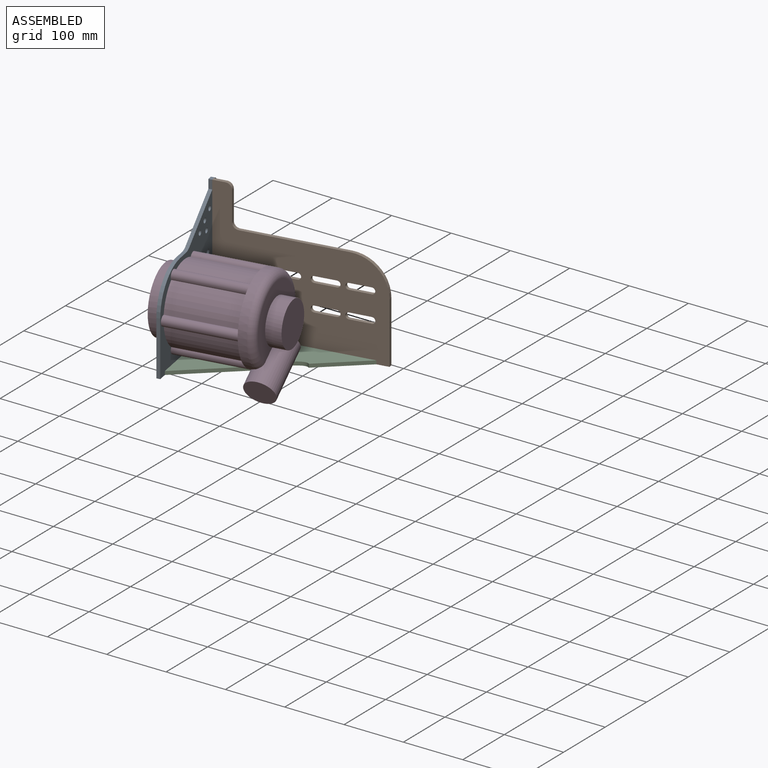
[diagram: assembled view]
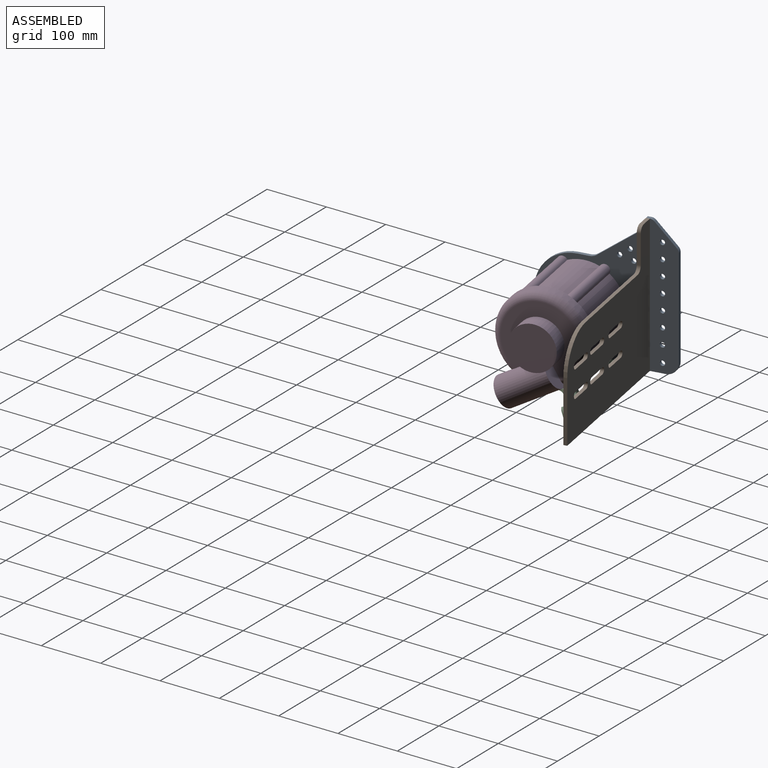
[diagram: assembled view, second angle]
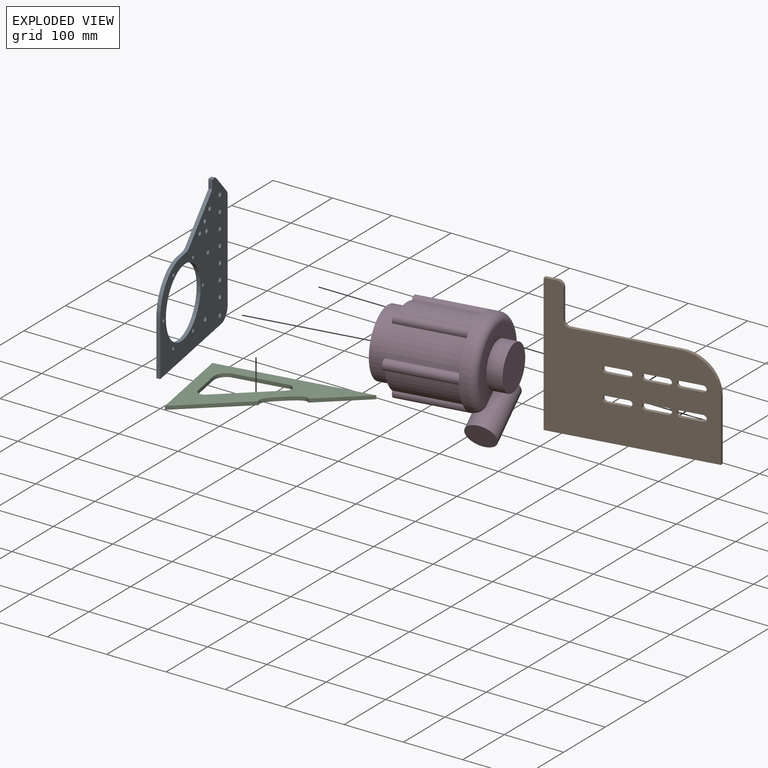
[diagram: exploded view]
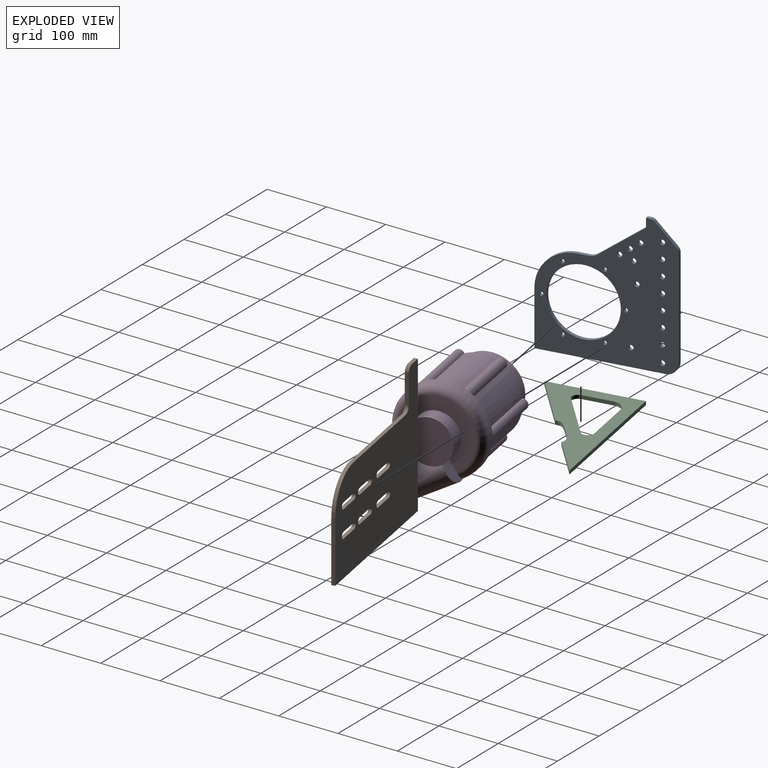
[diagram: exploded view, second angle]
ASSEMBLY  parts=4 mates=3
PART A: 36 faces, bbox 6x220x232 mm
  f0: plane 15x6mm, normal (0,-1,0), area 90mm2, adj f1,f32,f34,f35
  f1: plane 74.67x56mm, normal (0,-0.6,0.8), area 560mm2, adj f0,f2,f34,f35
  f2: cylinder r=20mm len=12mm, axis (-1,0,0), area 77.2mm2, adj f1,f3,f34,f35
  f3: plane 18.33x6mm, normal (0,0,1), area 110mm2, adj f2,f4,f34,f35
  f4: cylinder r=65mm len=65mm, axis (-1,0,0), area 612.6mm2, adj f3,f5,f34,f35
  f5: plane 92x6mm, normal (0,-1,0), area 552mm2, adj f4,f6,f34,f35
  f6: plane 200x6mm, normal (0,0,-1), area 1200mm2, adj f5,f7,f34,f35
  f7: cylinder r=20mm len=20mm, axis (-1,0,0), area 188.5mm2, adj f6,f8,f34,f35
  f8: plane 167.86x6mm, normal (0,1,0), area 1007.1mm2, adj f7,f9,f34,f35
  f9: cylinder r=10mm len=7.07mm, axis (-1,0,0), area 47.1mm2, adj f8,f10,f34,f35
  f10: plane 34.14x34.14mm, normal (0,0.71,0.71), area 289.7mm2, adj f9,f11,f34,f35
  f11: cylinder r=10mm len=7.07mm, axis (-1,0,0), area 47.1mm2, adj f10,f32,f34,f35
  f12: cylinder r=3.1mm len=6.2mm, axis (-1,0,0), area 116.9mm2, adj f34,f35
  f13: cylinder r=3.1mm len=6.2mm, axis (-1,0,0), area 116.9mm2, adj f34,f35
  f14: cylinder r=3.1mm len=6.2mm, axis (-1,0,0), area 116.9mm2, adj f34,f35
  f15: cylinder r=3.1mm len=6.2mm, axis (-1,0,0), area 116.9mm2, adj f34,f35
  f16: cylinder r=3.1mm len=6.2mm, axis (-1,0,0), area 116.9mm2, adj f34,f35
  f17: cylinder r=3.1mm len=6.2mm, axis (-1,0,0), area 116.9mm2, adj f34,f35
  f18: cylinder r=4.1mm len=8.2mm, axis (-1,0,0), area 154.6mm2, adj f34,f35
  f19: cylinder r=4.1mm len=8.2mm, axis (-1,0,0), area 154.6mm2, adj f34,f35
  f20: cylinder r=4.1mm len=8.2mm, axis (-1,0,0), area 154.6mm2, adj f34,f35
  f21: cylinder r=4.1mm len=8.2mm, axis (-1,0,0), area 154.6mm2, adj f34,f35
  f22: cylinder r=4.1mm len=8.2mm, axis (-1,0,0), area 154.6mm2, adj f34,f35
  f23: cylinder r=4.1mm len=8.2mm, axis (-1,0,0), area 154.6mm2, adj f34,f35
  f24: cylinder r=4.1mm len=8.2mm, axis (-1,0,0), area 154.6mm2, adj f34,f35
  f25: cylinder r=4.1mm len=8.2mm, axis (-1,0,0), area 154.6mm2, adj f34,f35
  f26: cylinder r=4.1mm len=8.2mm, axis (-1,0,0), area 154.6mm2, adj f34,f35
  f27: cylinder r=4.1mm len=8.2mm, axis (-1,0,0), area 154.6mm2, adj f34,f35
  f28: cylinder r=4.1mm len=8.2mm, axis (-1,0,0), area 154.6mm2, adj f34,f35
  f29: cylinder r=4.1mm len=8.2mm, axis (-1,0,0), area 154.6mm2, adj f34,f35
  f30: cylinder r=4.1mm len=8.2mm, axis (-1,0,0), area 154.6mm2, adj f34,f35
  f31: cylinder r=4.1mm len=8.2mm, axis (-1,0,0), area 154.6mm2, adj f34,f35
  f32: plane 6x5.86mm, normal (0,0,1), area 35.1mm2, adj f0,f11,f34,f35
  f33: cylinder r=56.75mm len=113.5mm, axis (-1,0,0), area 2139.4mm2, adj f34,f35
  f34: plane 232x220mm, normal (1,0,0), area 27859.6mm2, adj f0,f1,f2,f3,f4,f5,f6,f7
  f35: plane 232x220mm, normal (-1,0,0), area 27859.6mm2, adj f0,f1,f2,f3,f4,f5,f6,f7
PART B: 35 faces, bbox 270x6x232 mm
  f0: plane 35x6mm, normal (0,0,-1), area 210mm2, adj f1,f32,f33,f34
  f1: cylinder r=5.25mm len=10.5mm, axis (0,1,0), area 99mm2, adj f0,f2,f33,f34
  f2: plane 35x6mm, normal (0,0,1), area 210mm2, adj f1,f32,f33,f34
  f3: plane 35x6mm, normal (0,0,-1), area 210mm2, adj f4,f26,f33,f34
  f4: cylinder r=5.25mm len=10.5mm, axis (0,1,0), area 99mm2, adj f3,f5,f33,f34
  f5: plane 35x6mm, normal (0,0,1), area 210mm2, adj f4,f26,f33,f34
  f6: cylinder r=10mm len=10mm, axis (0,1,0), area 94.2mm2, adj f7,f27,f33,f34
  f7: plane 49x6mm, normal (1,0,0), area 294mm2, adj f6,f8,f33,f34
  f8: cylinder r=10mm len=10mm, axis (0,1,0), area 94.2mm2, adj f7,f9,f33,f34
  f9: plane 20x6mm, normal (0,0,1), area 120mm2, adj f8,f10,f33,f34
  f10: plane 232x6mm, normal (-1,0,0), area 1392mm2, adj f9,f11,f33,f34
  f11: plane 270x6mm, normal (0,0,-1), area 1620mm2, adj f10,f12,f33,f34
  f12: plane 103x6mm, normal (1,0,0), area 618mm2, adj f11,f13,f33,f34
  f13: cylinder r=60mm len=60mm, axis (0,1,0), area 565.5mm2, adj f12,f27,f33,f34
  f14: plane 35x6mm, normal (0,0,1), area 210mm2, adj f15,f28,f33,f34
  f15: cylinder r=5.25mm len=10.5mm, axis (0,1,0), area 99mm2, adj f14,f16,f33,f34
  f16: plane 35x6mm, normal (0,0,-1), area 210mm2, adj f15,f28,f33,f34
  f17: plane 35x6mm, normal (0,0,1), area 210mm2, adj f18,f29,f33,f34
  f18: cylinder r=5.25mm len=10.5mm, axis (0,1,0), area 99mm2, adj f17,f19,f33,f34
  f19: plane 35x6mm, normal (0,0,-1), area 210mm2, adj f18,f29,f33,f34
  f20: cylinder r=5.25mm len=10.5mm, axis (0,1,0), area 99mm2, adj f21,f30,f33,f34
  f21: plane 35x6mm, normal (0,0,-1), area 210mm2, adj f20,f22,f33,f34
  f22: cylinder r=5.25mm len=10.5mm, axis (0,1,0), area 99mm2, adj f21,f30,f33,f34
  f23: plane 35x6mm, normal (0,0,1), area 210mm2, adj f24,f31,f33,f34
  f24: cylinder r=5.25mm len=10.5mm, axis (0,1,0), area 99mm2, adj f23,f25,f33,f34
  f25: plane 35x6mm, normal (0,0,-1), area 210mm2, adj f24,f31,f33,f34
  f26: cylinder r=5.25mm len=10.5mm, axis (0,1,0), area 99mm2, adj f3,f5,f33,f34
  f27: plane 170x6mm, normal (0,0,1), area 1020mm2, adj f6,f13,f33,f34
  f28: cylinder r=5.25mm len=10.5mm, axis (0,1,0), area 99mm2, adj f14,f16,f33,f34
  f29: cylinder r=5.25mm len=10.5mm, axis (0,1,0), area 99mm2, adj f17,f19,f33,f34
  f30: plane 35x6mm, normal (0,0,1), area 210mm2, adj f20,f22,f33,f34
  f31: cylinder r=5.25mm len=10.5mm, axis (0,1,0), area 99mm2, adj f23,f25,f33,f34
  f32: cylinder r=5.25mm len=10.5mm, axis (0,1,0), area 99mm2, adj f0,f2,f33,f34
  f33: plane 270x232mm, normal (0,-1,0), area 42582.9mm2, adj f0,f1,f2,f3,f4,f5,f6,f7
  f34: plane 270x232mm, normal (0,1,0), area 42582.9mm2, adj f0,f1,f2,f3,f4,f5,f6,f7
PART C: 13 faces, bbox 250x155x6 mm
  f0: plane 110.49x68.5mm, normal (0.53,-0.85,0), area 780mm2, adj f1,f10,f11,f12
  f1: extruded ~60.01x39.72mm, area 466.9mm2, adj f0,f2,f11,f12
  f2: plane 80.02x49.61mm, normal (0.53,-0.85,0), area 564.9mm2, adj f1,f3,f11,f12
  f3: plane 250x6mm, normal (0,1,0), area 1500mm2, adj f2,f10,f11,f12
  f4: cylinder r=10mm len=18.5mm, axis (0,0,1), area 155.2mm2, adj f5,f9,f11,f12
  f5: plane 95.7x59.34mm, normal (-0.53,0.85,0), area 675.6mm2, adj f4,f6,f11,f12
  f6: cylinder r=10mm len=15.27mm, axis (0,0,1), area 127.5mm2, adj f5,f7,f11,f12
  f7: plane 49.34x6mm, normal (1,0,0), area 296mm2, adj f6,f8,f11,f12
  f8: cylinder r=20mm len=20mm, axis (0,0,1), area 188.5mm2, adj f7,f9,f11,f12
  f9: plane 85.7x6mm, normal (0,-1,0), area 514.2mm2, adj f4,f8,f11,f12
  f10: plane 155x6mm, normal (-1,0,0), area 930mm2, adj f0,f3,f11,f12
  f11: plane 250x155mm, normal (0,0,-1), area 13010.7mm2, adj f0,f1,f2,f3,f4,f5,f6,f7
  f12: plane 250x155mm, normal (0,0,1), area 13010.7mm2, adj f0,f1,f2,f3,f4,f5,f6,f7
PART D: 31 faces, bbox 195.5x158x187.2 mm
  f0: cylinder r=56.5mm len=113mm, axis (1,0,0), area 1775mm2, adj f1,f16
  f1: plane 113x113mm, normal (-1,0,0), area 525.4mm2, adj f0,f2
  f2: cylinder r=55mm len=110mm, axis (1,0,0), area 8121mm2, adj f1,f3
  f3: plane 110x110mm, normal (-1,0,0), area 9503.3mm2, adj f2
  f4: cylinder r=8.5mm len=117mm, axis (-1,0,0), area 3255.5mm2, adj f5,f15,f16,f17,f18
  f5: cylinder r=64.5mm len=117mm, axis (-1,0,0), area 5912.2mm2, adj f4,f6,f16,f18
  f6: cylinder r=8.5mm len=117mm, axis (-1,0,0), area 3255.5mm2, adj f5,f7,f16,f18,f19
  f7: cylinder r=64.5mm len=117mm, axis (-1,0,0), area 5912.2mm2, adj f6,f8,f16,f19
  f8: cylinder r=8.5mm len=117mm, axis (-1,0,0), area 3255.5mm2, adj f7,f9,f16,f19,f20
  f9: cylinder r=64.5mm len=117mm, axis (-1,0,0), area 5912.2mm2, adj f8,f10,f16,f20
  f10: cylinder r=8.5mm len=117mm, axis (-1,0,0), area 3255.5mm2, adj f9,f11,f16,f20,f21
  f11: cylinder r=64.5mm len=117mm, axis (-1,0,0), area 5912.2mm2, adj f10,f12,f16,f21
  f12: cylinder r=8.5mm len=117mm, axis (-1,0,0), area 3255.5mm2, adj f11,f13,f16,f21,f22
  f13: cylinder r=64.5mm len=117mm, axis (-1,0,0), area 5912.2mm2, adj f12,f14,f16,f22
  f14: cylinder r=8.5mm len=117mm, axis (-1,0,0), area 3255.5mm2, adj f13,f15,f16,f17,f22
  f15: cylinder r=64.5mm len=117mm, axis (-1,0,0), area 5912.2mm2, adj f4,f14,f16,f17
  f16: plane 146x129mm, normal (-1,0,0), area 3741.1mm2, adj f0,f4,f5,f6,f7,f8,f9,f10
  f17: plane 63.22x36.5mm, normal (-1,0,0), area 495.3mm2, adj f4,f14,f15,f26
  f18: plane 73x13.39mm, normal (-1,0,0), area 495.3mm2, adj f4,f5,f6,f26
  f19: plane 63.22x36.5mm, normal (-1,0,0), area 495.3mm2, adj f6,f7,f8,f26
  f20: plane 63.22x36.5mm, normal (-1,0,0), area 495.3mm2, adj f8,f9,f10,f26
  f21: plane 73x13.39mm, normal (-1,0,0), area 495.3mm2, adj f10,f11,f12,f26
  f22: plane 63.22x36.5mm, normal (-1,0,0), area 495.3mm2, adj f12,f13,f14,f26
  f23: cylinder r=37mm len=74mm, axis (-1,0,0), area 5202.3mm2, adj f24,f27,f28,f29
  f24: plane 121x112.89mm, normal (1,0,0), area 5963.4mm2, adj f23,f25,f28,f29
  f25: torus R=60.5mm, axis (-1,0,0), area 6889.8mm2, adj f24,f26,f28,f29
  f26: cylinder r=73mm len=146mm, axis (-1,0,0), area 5184.5mm2, adj f17,f18,f19,f20,f21,f22,f25,f29
  f27: plane 74x74mm, normal (1,0,0), area 4300.8mm2, adj f23
  f28: plane 32.36x31.18mm, normal (0,0.87,0.5), area 785.7mm2, adj f23,f24,f25,f29
  f29: cylinder r=25mm len=102.94mm, axis (0,0.87,0.5), area 9843.5mm2, adj f23,f24,f25,f26,f28,f30
  f30: plane 50x43.3mm, normal (0,-0.87,-0.5), area 1963.5mm2, adj f29
PLACE A rot(axis=(0,0,1),10deg) t=(-125.62,189.34,-12.73)mm
PLACE B rot(axis=(0,0,1),10deg) t=(-112.07,147.05,-12.73)mm
PLACE C rot(axis=(0,0,1),10deg) t=(-111.03,141.15,-6.73)mm
PLACE D rot(axis=(0,0,1),10deg) t=(-94.54,47.59,72.27)mm
MATE fastened D.f0 <-> A.f33  axis (-0.98,-0.17,0) through (-94.54,47.59,72.27)mm
MATE fastened B.f10 <-> A.f34  axis (-0.98,-0.17,0) through (-111.03,141.15,219.27)mm
MATE fastened C.f3 <-> B.f33  axis (-0.17,0.98,0) through (-111.03,141.15,-12.73)mm
